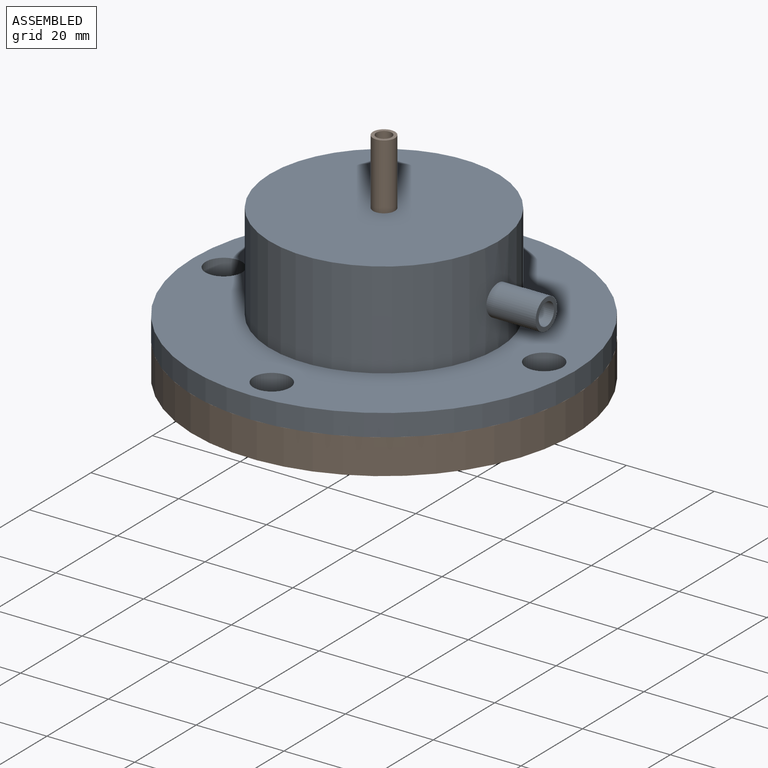
[diagram: assembled view]
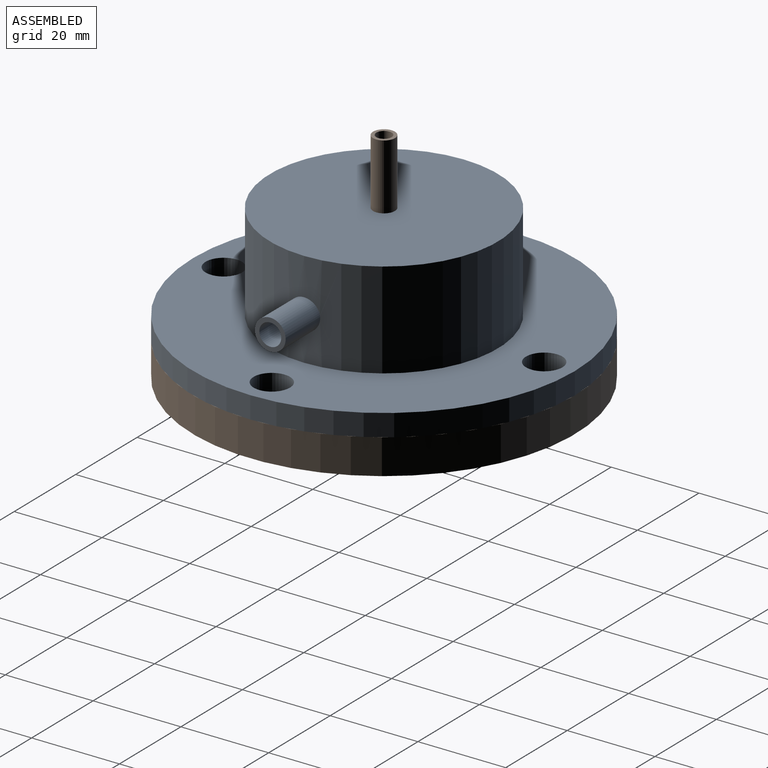
[diagram: assembled view, second angle]
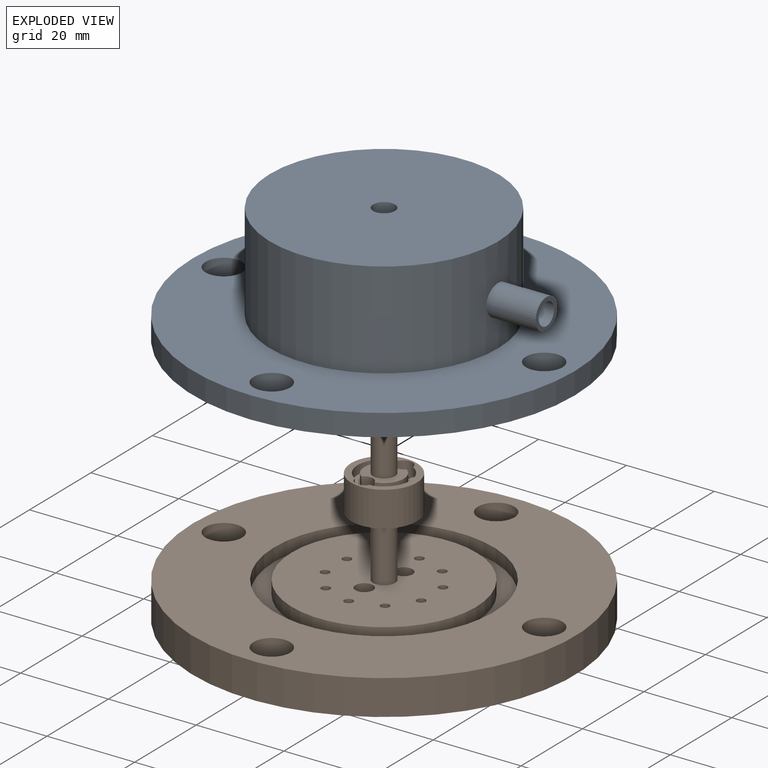
[diagram: exploded view]
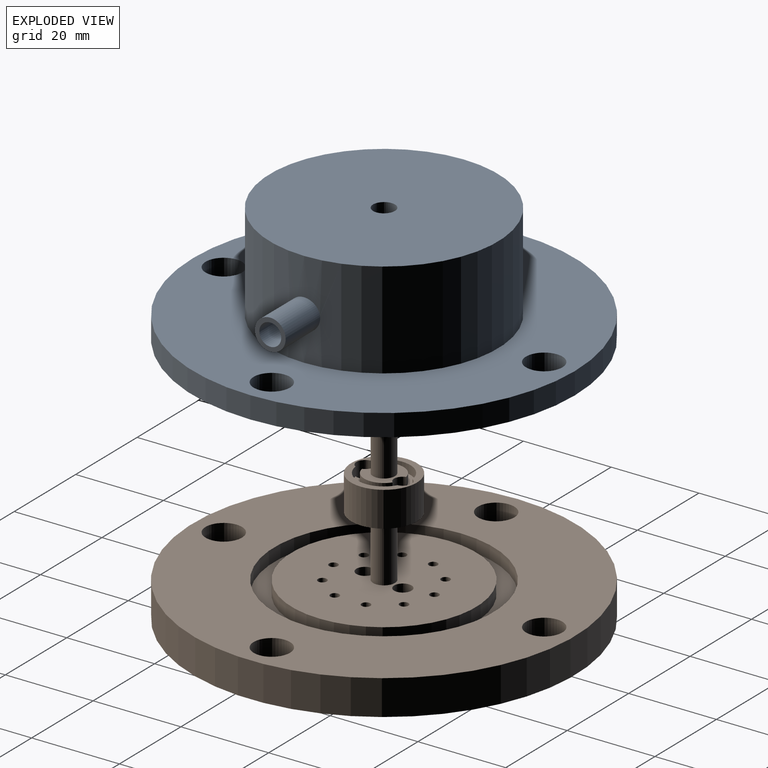
[diagram: exploded view, second angle]
ASSEMBLY  parts=2 mates=2
PART A: 23 faces, bbox 87x87x28 mm
  f0: cylinder r=26mm len=52mm, axis (0,0,1), area 3555.4mm2, adj f3,f4,f20
  f1: plane 9x9mm, normal (0,0,1), area 44mm2, adj f2,f15
  f2: cylinder r=2.5mm len=5mm, axis (0,0,1), area 78.5mm2, adj f1,f3
  f3: plane 52x52mm, normal (0,0,-1), area 2104.1mm2, adj f0,f2
  f4: plane 87x87mm, normal (0,0,-1), area 3604.5mm2, adj f0,f5,f16,f17,f18,f19
  f5: cylinder r=43.5mm len=87mm, axis (0,0,1), area 1366.6mm2, adj f4,f6
  f6: plane 87x87mm, normal (0,0,1), area 3764.8mm2, adj f5,f7,f16,f17,f18,f19
  f7: cylinder r=25mm len=50mm, axis (0,0,1), area 157.1mm2, adj f6,f8
  f8: plane 50x50mm, normal (0,0,1), area 578.1mm2, adj f7,f9
  f9: cylinder r=21mm len=42mm, axis (0,0,1), area 131.9mm2, adj f8,f10
  f10: plane 42x42mm, normal (0,0,1), area 367.6mm2, adj f9,f11
  f11: cylinder r=18mm len=36mm, axis (0,0,1), area 2468.5mm2, adj f10,f12,f22
  f12: plane 36x36mm, normal (0,0,1), area 904.8mm2, adj f11,f13
  f13: cylinder r=6mm len=12mm, axis (0,0,1), area 37.7mm2, adj f12,f14
  f14: plane 12x12mm, normal (0,0,1), area 49.5mm2, adj f13,f15
  f15: cylinder r=4.5mm len=9mm, axis (0,0,1), area 28.3mm2, adj f1,f14
  f16: cylinder r=4.15mm len=8.3mm, axis (0,0,1), area 130.4mm2, adj f4,f6
  f17: cylinder r=4.15mm len=8.3mm, axis (0,0,1), area 130.4mm2, adj f4,f6
  f18: cylinder r=4.15mm len=8.3mm, axis (0,0,1), area 130.4mm2, adj f4,f6
  f19: cylinder r=4.15mm len=8.3mm, axis (0,0,1), area 130.4mm2, adj f4,f6
  f20: cylinder r=3.5mm len=11.24mm, axis (-1,0,0), area 244.5mm2, adj f0,f21
  f21: plane 7x7mm, normal (1,0,0), area 18.8mm2, adj f20,f22
  f22: cylinder r=2.5mm len=19.17mm, axis (1,0,0), area 299.8mm2, adj f11,f21
PART B: 67 faces, bbox 87x87x53 mm
  f0: plane 15x15mm, normal (0,0,-1), area 57.3mm2, adj f1,f2,f40,f61,f65
  f1: cylinder r=2mm len=8mm, axis (0,0,-1), area 94.2mm2, adj f0,f5,f39,f61,f62,f63,f64,f65
  f2: cylinder r=2mm len=8mm, axis (0,0,-1), area 94.2mm2, adj f0,f5,f39,f61,f62,f63,f64,f65
  f3: cylinder r=2mm len=5.66mm, axis (0.71,0,0.71), area 39.3mm2, adj f21,f51,f59,f60
  f4: cylinder r=2mm len=5.66mm, axis (-0.71,0,0.71), area 39.3mm2, adj f25,f52,f55,f56
  f5: plane 9x8.81mm, normal (0,0,-1), area 37.1mm2, adj f1,f2,f31,f62,f66
  f6: cylinder r=8mm len=16mm, axis (0,0,-1), area 150.8mm2, adj f18,f20
  f7: plane 87x87mm, normal (0,0,1), area 5021.4mm2, adj f9,f10,f11,f12,f13,f16
  f8: plane 87x87mm, normal (0,0,-1), area 3764.8mm2, adj f9,f10,f11,f12,f13,f34
  f9: cylinder r=43.5mm len=87mm, axis (0,0,-1), area 2186.5mm2, adj f7,f8
  f10: cylinder r=4.15mm len=8.3mm, axis (0,0,-1), area 208.6mm2, adj f7,f8
  f11: cylinder r=4.15mm len=8.3mm, axis (0,0,-1), area 208.6mm2, adj f7,f8
  f12: cylinder r=4.15mm len=8.3mm, axis (0,0,-1), area 208.6mm2, adj f7,f8
  f13: cylinder r=4.15mm len=8.3mm, axis (0,0,-1), area 208.6mm2, adj f7,f8
  f14: cylinder r=13mm len=26mm, axis (0,0,-1), area 245mm2, adj f15,f17
  f15: plane 30x30mm, normal (0,0,1), area 175.9mm2, adj f14,f16
  f16: cylinder r=15mm len=30mm, axis (0,0,-1), area 282.7mm2, adj f7,f15
  f17: plane 26x26mm, normal (0,0,1), area 185.4mm2, adj f14,f19,f41,f42,f43,f44,f45,f46
  f18: plane 20x20mm, normal (0,0,1), area 113.1mm2, adj f6,f19
  f19: cylinder r=10mm len=20mm, axis (0,0,-1), area 188.5mm2, adj f17,f18
  f20: plane 16x16mm, normal (0,0,1), area 133.5mm2, adj f6,f21,f22,f23,f24,f25,f26,f27
  f21: plane 4.5x3.01mm, normal (0.71,0,0.71), area 4.4mm2, adj f3,f20,f22,f23,f24
  f22: plane 2.83x1.41mm, normal (0,1,0), area 2mm2, adj f20,f21,f23
  f23: cylinder r=2.25mm len=4.6mm, axis (0.71,0,0.71), area 24.3mm2, adj f20,f21,f22,f24
  f24: plane 2.83x1.41mm, normal (0,-1,0), area 2mm2, adj f20,f21,f23
  f25: plane 4.5x3.01mm, normal (-0.71,0,0.71), area 4.4mm2, adj f4,f20,f26,f27,f28
  f26: plane 2.83x1.41mm, normal (0,-1,0), area 2mm2, adj f20,f25,f27
  f27: cylinder r=2.25mm len=4.6mm, axis (-0.71,0,0.71), area 24.3mm2, adj f20,f25,f26,f28
  f28: plane 2.83x1.41mm, normal (0,1,0), area 2mm2, adj f20,f25,f27
  f29: plane 5x5mm, normal (0,0,1), area 10mm2, adj f30,f33
  f30: cylinder r=2.5mm len=5mm, axis (0,0,-1), area 39.3mm2, adj f20,f29
  f31: cylinder r=2.5mm len=20mm, axis (0,0,-1), area 314.2mm2, adj f5,f32
  f32: plane 5x5mm, normal (0,0,-1), area 10mm2, adj f31,f33
  f33: cylinder r=1.75mm len=52.5mm, axis (0,0,1), area 577.3mm2, adj f29,f32
  f34: cylinder r=25mm len=50mm, axis (0,0,-1), area 471.2mm2, adj f8,f35
  f35: plane 50x50mm, normal (0,0,-1), area 578.1mm2, adj f34,f36
  f36: cylinder r=21mm len=42mm, axis (0,0,-1), area 395.8mm2, adj f35,f37
  f37: plane 42x42mm, normal (0,0,-1), area 1309.3mm2, adj f36,f38,f41,f42,f43,f44,f45,f46
  f38: cylinder r=2.5mm len=14mm, axis (0,0,-1), area 219.9mm2, adj f37,f39
  f39: plane 15x15mm, normal (0,0,1), area 131.9mm2, adj f1,f2,f38,f40
  f40: cylinder r=7.5mm len=15mm, axis (0,0,-1), area 377mm2, adj f0,f39
  f41: cylinder r=1mm len=8mm, axis (0,0,1), area 50.3mm2, adj f17,f37
  f42: cylinder r=1mm len=8mm, axis (0,0,1), area 50.3mm2, adj f17,f37
  f43: cylinder r=1mm len=8mm, axis (0,0,1), area 50.3mm2, adj f17,f37
  f44: cylinder r=1mm len=8mm, axis (0,0,1), area 50.3mm2, adj f17,f37
  f45: cylinder r=1mm len=8mm, axis (0,0,1), area 50.3mm2, adj f17,f37
  f46: cylinder r=1mm len=8mm, axis (0,0,1), area 50.3mm2, adj f17,f37
  f47: cylinder r=1mm len=8mm, axis (0,0,1), area 50.3mm2, adj f17,f37
  f48: cylinder r=1mm len=8mm, axis (0,0,1), area 50.3mm2, adj f17,f37
  f49: cylinder r=1mm len=8mm, axis (0,0,1), area 50.3mm2, adj f17,f37
  f50: cylinder r=1mm len=8mm, axis (0,0,1), area 50.3mm2, adj f17,f37
  f51: cylinder r=2mm len=7mm, axis (0,0,-1), area 80mm2, adj f3,f37,f57,f58
  f52: cylinder r=2mm len=7mm, axis (0,0,-1), area 80mm2, adj f4,f37,f53,f54
  f53: plane 4x1.88mm, normal (-0.71,0,0.71), area 3.6mm2, adj f52,f54
  f54: cylinder r=2mm len=4mm, axis (-0.71,0,0.71), area 7.7mm2, adj f52,f53,f55
  f55: cylinder r=2mm len=4mm, axis (0,0,-1), area 3.4mm2, adj f4,f54,f56
  f56: plane 4x2.41mm, normal (0,0,-1), area 1.4mm2, adj f4,f55
  f57: plane 4x1.88mm, normal (0.71,0,0.71), area 3.6mm2, adj f51,f58
  f58: cylinder r=2mm len=4mm, axis (0.71,0,0.71), area 7.7mm2, adj f51,f57,f59
  f59: cylinder r=2mm len=4mm, axis (0,0,-1), area 3.4mm2, adj f3,f58,f60
  f60: plane 4x2.41mm, normal (0,0,-1), area 1.4mm2, adj f3,f59
  f61: cylinder r=6mm len=11.15mm, axis (0,0,-1), area 29.9mm2, adj f0,f1,f2,f63
  f62: cylinder r=4.5mm len=8.13mm, axis (0,0,-1), area 21.1mm2, adj f1,f2,f5,f63
  f63: plane 11.15x5.24mm, normal (0,0,-1), area 18.8mm2, adj f1,f2,f61,f62
  f64: plane 11.15x5.24mm, normal (0,0,-1), area 18.8mm2, adj f1,f2,f65,f66
  f65: cylinder r=6mm len=11.15mm, axis (0,0,-1), area 29.9mm2, adj f0,f1,f2,f64
  f66: cylinder r=4.5mm len=8.13mm, axis (0,0,-1), area 21.1mm2, adj f1,f2,f5,f64
PLACE A rot(axis=(1,0,0),180deg) t=(7.91,-50.19,133.8)mm
PLACE B rot(axis=(0,-1,0),180deg) t=(7.91,-50.19,111.8)mm
MATE slider B.f11 <-> A.f16  axis (0,0,1) through (-28.59,-50.19,111.8)mm
MATE slider B.f6 <-> A.f0  axis (0,0,1) through (7.91,-50.19,111.8)mm
